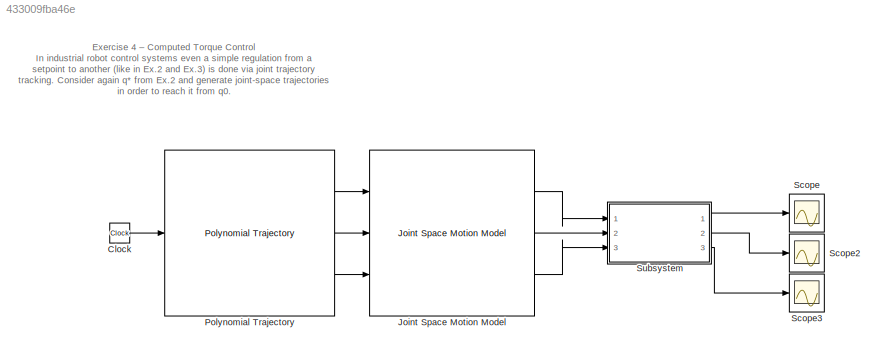
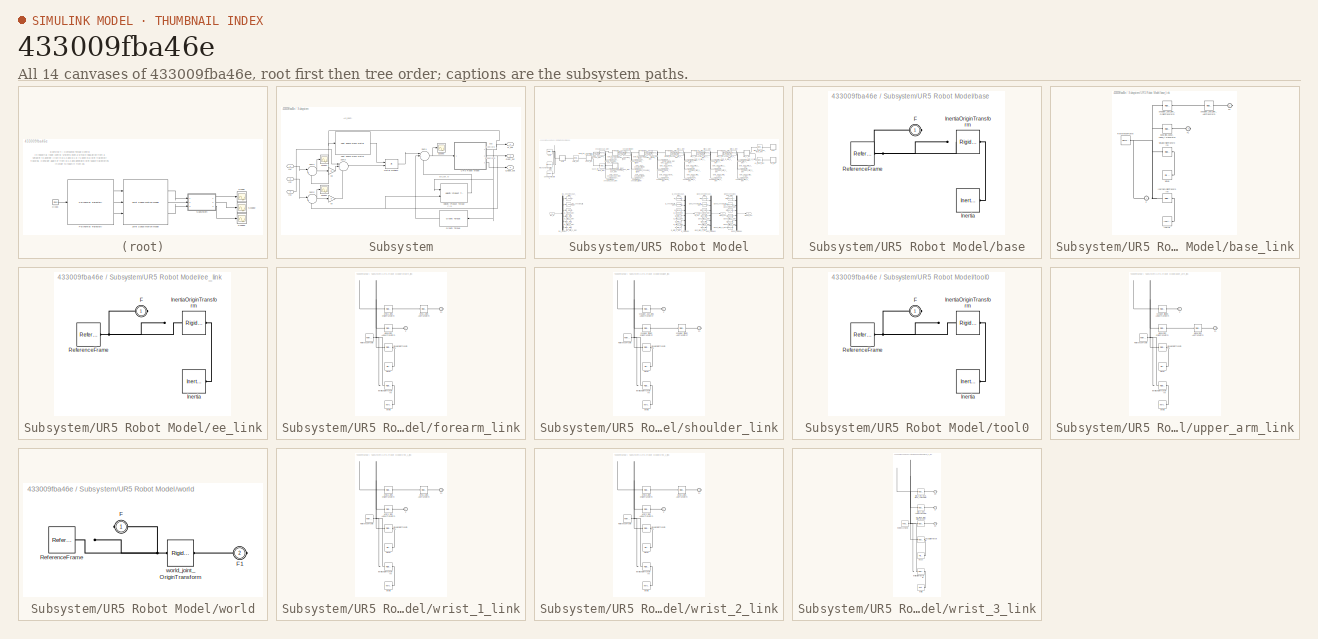
[diagram: thumbnail index - all 14 canvases of the model, root first then tree order]
MODEL slx_433009fba46e
KIND model
CONFIG AbsTol = auto
CONFIG EnableMultiTasking = off
CONFIG FixedStep = auto
CONFIG MaxStep = auto
CONFIG MinStep = auto
CONFIG RelTol = 1e-3
CONFIG SampleTimeConstraint = Unconstrained
CONFIG SolverName = VariableStepAuto
CONFIG StartTime = 0.0
CONFIG StopTime = 10.0
WORKSPACE source: mxarray member
WORKSPACE dq0 = [0 0 0 0 0 0]
WORKSPACE q0 = [0 0 0 0 0 0]
WORKSPACE robotModel: robotics.RigidBodyTree (value not decoded)
BLOCK [Clock] Clock
BLOCK [Reference] Joint Space Motion Model  REF=robotmaniplib/Joint Space Motion Model
  Ports = [3, 3]
  SourceBlock = robotmaniplib/Joint Space Motion Model
  SourceProductBaseCode = RO
  SourceType = Joint Space Motion Model
BLOCK [Reference] Polynomial Trajectory  REF=robotcorelib/Polynomial Trajectory
  Ports = [1, 3]
  SourceBlock = robotcorelib/Polynomial Trajectory
  SourceProductBaseCode = RO,NV,RR,UV
  SourceType = robotics.slcore.internal.block.PolyTrajSys
BLOCK [Scope] Scope
  Floating = off
  NumInputPorts = 1
  Ports = [1]
  ScopeSpecificationString = Simulink.scopes.TimeScopeBlockCfg('CurrentConfiguration', extmgr.ConfigurationSet(extmgr.Configuration('Core','General UI',true),extmgr.Configuration('Core','Source UI',true),extmgr.Configuration('Sources','WiredSimulink',true),extmgr.Configuration('Visuals','Time Domain',true,'SerializedDisplays',{struct('MinYLimReal','-2.76811','MaxYLimReal','3.80371','YLabelReal','','MinYLimMag','0.00000','MaxY...<+1448ch>
BLOCK [Scope] Scope2
  Floating = off
  NumInputPorts = 1
  Ports = [1]
  ScopeSpecificationString = Simulink.scopes.TimeScopeBlockCfg('CurrentConfiguration', extmgr.ConfigurationSet(extmgr.Configuration('Core','General UI',true),extmgr.Configuration('Core','Source UI',true),extmgr.Configuration('Sources','WiredSimulink',true,'DataLoggingVariableName','ScopeData2'),extmgr.Configuration('Visuals','Time Domain',true,'SerializedDisplays',{struct('MinYLimReal','-4.69973','MaxYLimReal','5.75727','YLab...<+1485ch>
BLOCK [Scope] Scope3
  Floating = off
  NumInputPorts = 1
  Ports = [1]
  ScopeSpecificationString = Simulink.scopes.TimeScopeBlockCfg('CurrentConfiguration', extmgr.ConfigurationSet(extmgr.Configuration('Core','General UI',true),extmgr.Configuration('Core','Source UI',true),extmgr.Configuration('Sources','WiredSimulink',true,'DataLoggingVariableName','ScopeData3'),extmgr.Configuration('Visuals','Time Domain',true,'SerializedDisplays',{struct('MinYLimReal','-149.61835','MaxYLimReal','89.92809','Y...<+1497ch>
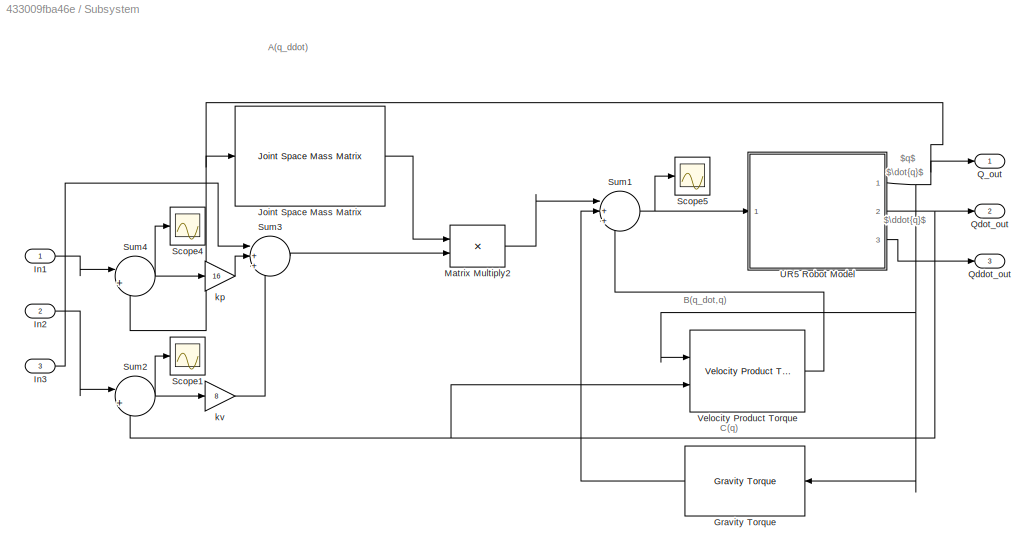
BLOCK [SubSystem] Subsystem
  Ports = [3, 3]
  RequestExecContextInheritance = off
BLOCK [Reference] Subsystem/Gravity Torque  REF=robotmaniplib/Gravity Torque
  Ports = [1, 1]
  SourceBlock = robotmaniplib/Gravity Torque
  SourceProductBaseCode = RO
  SourceType = Gravity Torque
BLOCK [Inport] Subsystem/In1
BLOCK [Inport] Subsystem/In2
  Port = 2
BLOCK [Inport] Subsystem/In3
  Port = 3
BLOCK [Reference] Subsystem/Joint Space Mass Matrix  REF=robotmaniplib/Joint Space Mass Matrix
  Ports = [1, 1]
  SourceBlock = robotmaniplib/Joint Space Mass Matrix
  SourceProductBaseCode = RO
  SourceType = Joint Space Mass Matrix
BLOCK [Product] Subsystem/Matrix Multiply2
  Multiplication = Matrix(*)
  Ports = [2, 1]
BLOCK [Outport] Subsystem/Q_out
BLOCK [Outport] Subsystem/Qddot_out
  Port = 3
BLOCK [Outport] Subsystem/Qdot_out
  Port = 2
BLOCK [Scope] Subsystem/Scope1
  Floating = off
  NumInputPorts = 1
  Ports = [1]
  ScopeSpecificationString = Simulink.scopes.TimeScopeBlockCfg('CurrentConfiguration', extmgr.ConfigurationSet(extmgr.Configuration('Core','General UI',true),extmgr.Configuration('Core','Source UI',true),extmgr.Configuration('Sources','WiredSimulink',true,'DataLoggingVariableName','ScopeData1'),extmgr.Configuration('Visuals','Time Domain',true,'SerializedDisplays',{struct('MinYLimReal','-2.74472','MaxYLimReal','1.58905','YLab...<+1437ch>
BLOCK [Scope] Subsystem/Scope4
  Floating = off
  NumInputPorts = 1
  Ports = [1]
  ScopeSpecificationString = Simulink.scopes.TimeScopeBlockCfg('CurrentConfiguration', extmgr.ConfigurationSet(extmgr.Configuration('Core','General UI',true),extmgr.Configuration('Core','Source UI',true),extmgr.Configuration('Sources','WiredSimulink',true,'DataLoggingVariableName','ScopeData4'),extmgr.Configuration('Visuals','Time Domain',true,'SerializedDisplays',{struct('MinYLimReal','-1.07992','MaxYLimReal','1.86532','YLab...<+1574ch>
BLOCK [Scope] Subsystem/Scope5
  Floating = off
  NumInputPorts = 1
  Ports = [1]
  ScopeSpecificationString = Simulink.scopes.TimeScopeBlockCfg('CurrentConfiguration', extmgr.ConfigurationSet(extmgr.Configuration('Core','General UI',true),extmgr.Configuration('Core','Source UI',true),extmgr.Configuration('Sources','WiredSimulink',true,'DataLoggingVariableName','ScopeData5'),extmgr.Configuration('Visuals','Time Domain',true,'SerializedDisplays',{struct('MinYLimReal','-429.67074','MaxYLimReal','146.64274','...<+1451ch>
BLOCK [Sum] Subsystem/Sum1
  Inputs = |+++
  Ports = [3, 1]
BLOCK [Sum] Subsystem/Sum2
  Inputs = |+-
  Ports = [2, 1]
BLOCK [Sum] Subsystem/Sum3
  Inputs = |+++
  Ports = [3, 1]
BLOCK [Sum] Subsystem/Sum4
  Inputs = |+-
  Ports = [2, 1]
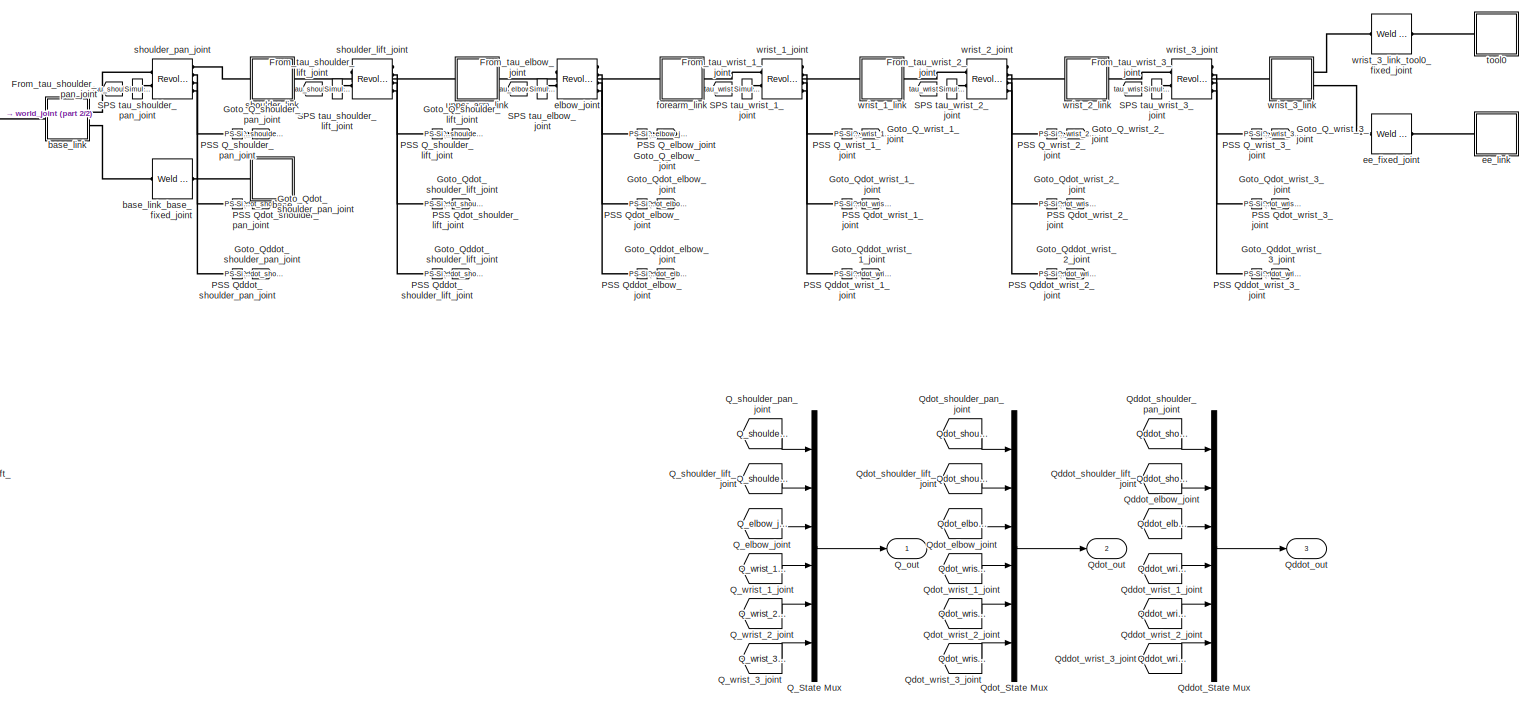
[diagram: Subsystem/UR5 Robot Model - part 1/2, most of the canvas]
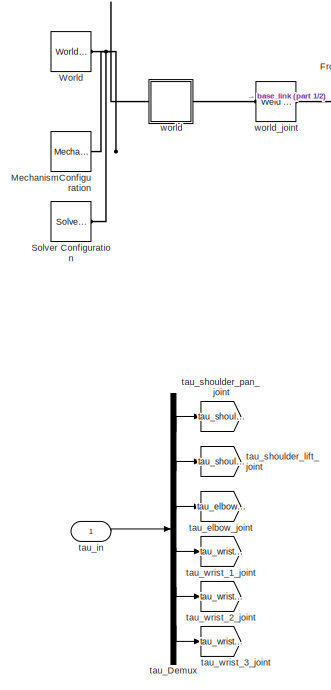
[diagram: Subsystem/UR5 Robot Model - part 2/2, left side, full height]
BLOCK [SubSystem] Subsystem/UR5 Robot Model
  Ports = [1, 3]
  RequestExecContextInheritance = off
BLOCK [From] Subsystem/UR5 Robot Model/From_tau_elbow_joint
  GotoTag = tau_elbow_joint
BLOCK [From] Subsystem/UR5 Robot Model/From_tau_shoulder_lift_joint
  GotoTag = tau_shoulder_lift_joint
BLOCK [From] Subsystem/UR5 Robot Model/From_tau_shoulder_pan_joint
  GotoTag = tau_shoulder_pan_joint
BLOCK [From] Subsystem/UR5 Robot Model/From_tau_wrist_1_joint
  GotoTag = tau_wrist_1_joint
BLOCK [From] Subsystem/UR5 Robot Model/From_tau_wrist_2_joint
  GotoTag = tau_wrist_2_joint
BLOCK [From] Subsystem/UR5 Robot Model/From_tau_wrist_3_joint
  GotoTag = tau_wrist_3_joint
BLOCK [Goto] Subsystem/UR5 Robot Model/Goto_Q_elbow_joint
  GotoTag = Q_elbow_joint
BLOCK [Goto] Subsystem/UR5 Robot Model/Goto_Q_shoulder_lift_joint
  GotoTag = Q_shoulder_lift_joint
BLOCK [Goto] Subsystem/UR5 Robot Model/Goto_Q_shoulder_pan_joint
  GotoTag = Q_shoulder_pan_joint
BLOCK [Goto] Subsystem/UR5 Robot Model/Goto_Q_wrist_1_joint
  GotoTag = Q_wrist_1_joint
BLOCK [Goto] Subsystem/UR5 Robot Model/Goto_Q_wrist_2_joint
  GotoTag = Q_wrist_2_joint
BLOCK [Goto] Subsystem/UR5 Robot Model/Goto_Q_wrist_3_joint
  GotoTag = Q_wrist_3_joint
BLOCK [Goto] Subsystem/UR5 Robot Model/Goto_Qddot_elbow_joint
  GotoTag = Qddot_elbow_joint
BLOCK [Goto] Subsystem/UR5 Robot Model/Goto_Qddot_shoulder_lift_joint
  GotoTag = Qddot_shoulder_lift_joint
BLOCK [Goto] Subsystem/UR5 Robot Model/Goto_Qddot_shoulder_pan_joint
  GotoTag = Qddot_shoulder_pan_joint
BLOCK [Goto] Subsystem/UR5 Robot Model/Goto_Qddot_wrist_1_joint
  GotoTag = Qddot_wrist_1_joint
BLOCK [Goto] Subsystem/UR5 Robot Model/Goto_Qddot_wrist_2_joint
  GotoTag = Qddot_wrist_2_joint
BLOCK [Goto] Subsystem/UR5 Robot Model/Goto_Qddot_wrist_3_joint
  GotoTag = Qddot_wrist_3_joint
BLOCK [Goto] Subsystem/UR5 Robot Model/Goto_Qdot_elbow_joint
  GotoTag = Qdot_elbow_joint
BLOCK [Goto] Subsystem/UR5 Robot Model/Goto_Qdot_shoulder_lift_joint
  GotoTag = Qdot_shoulder_lift_joint
BLOCK [Goto] Subsystem/UR5 Robot Model/Goto_Qdot_shoulder_pan_joint
  GotoTag = Qdot_shoulder_pan_joint
BLOCK [Goto] Subsystem/UR5 Robot Model/Goto_Qdot_wrist_1_joint
  GotoTag = Qdot_wrist_1_joint
BLOCK [Goto] Subsystem/UR5 Robot Model/Goto_Qdot_wrist_2_joint
  GotoTag = Qdot_wrist_2_joint
BLOCK [Goto] Subsystem/UR5 Robot Model/Goto_Qdot_wrist_3_joint
  GotoTag = Qdot_wrist_3_joint
BLOCK [Reference] Subsystem/UR5 Robot Model/MechanismConfiguration  REF=sm_lib/Utilities/Mechanism
Configuration
  Ports = [0, 0, 0, 0, 0, 0, 1]
  SourceBlock = sm_lib/Utilities/Mechanism\nConfiguration
  SourceProductBaseCode = MS
  SourceType = Mechanism\nConfiguration
BLOCK [Reference] Subsystem/UR5 Robot Model/PSS Q_elbow_joint  REF=nesl_utility/PS-Simulink
Converter
  Ports = [0, 1, 0, 0, 0, 1]
  SourceBlock = nesl_utility/PS-Simulink\nConverter
  SourceProductBaseCode = SS,PW,VE
  SourceType = PS-Simulink\nConverter
BLOCK [Reference] Subsystem/UR5 Robot Model/PSS Q_shoulder_lift_joint  REF=nesl_utility/PS-Simulink
Converter
  Ports = [0, 1, 0, 0, 0, 1]
  SourceBlock = nesl_utility/PS-Simulink\nConverter
  SourceProductBaseCode = SS,PW,VE
  SourceType = PS-Simulink\nConverter
BLOCK [Reference] Subsystem/UR5 Robot Model/PSS Q_shoulder_pan_joint  REF=nesl_utility/PS-Simulink
Converter
  Ports = [0, 1, 0, 0, 0, 1]
  SourceBlock = nesl_utility/PS-Simulink\nConverter
  SourceProductBaseCode = SS,PW,VE
  SourceType = PS-Simulink\nConverter
BLOCK [Reference] Subsystem/UR5 Robot Model/PSS Q_wrist_1_joint  REF=nesl_utility/PS-Simulink
Converter
  Ports = [0, 1, 0, 0, 0, 1]
  SourceBlock = nesl_utility/PS-Simulink\nConverter
  SourceProductBaseCode = SS,PW,VE
  SourceType = PS-Simulink\nConverter
BLOCK [Reference] Subsystem/UR5 Robot Model/PSS Q_wrist_2_joint  REF=nesl_utility/PS-Simulink
Converter
  Ports = [0, 1, 0, 0, 0, 1]
  SourceBlock = nesl_utility/PS-Simulink\nConverter
  SourceProductBaseCode = SS,PW,VE
  SourceType = PS-Simulink\nConverter
BLOCK [Reference] Subsystem/UR5 Robot Model/PSS Q_wrist_3_joint  REF=nesl_utility/PS-Simulink
Converter
  Ports = [0, 1, 0, 0, 0, 1]
  SourceBlock = nesl_utility/PS-Simulink\nConverter
  SourceProductBaseCode = SS,PW,VE
  SourceType = PS-Simulink\nConverter
BLOCK [Reference] Subsystem/UR5 Robot Model/PSS Qddot_elbow_joint  REF=nesl_utility/PS-Simulink
Converter
  Ports = [0, 1, 0, 0, 0, 1]
  SourceBlock = nesl_utility/PS-Simulink\nConverter
  SourceProductBaseCode = SS,PW,VE
  SourceType = PS-Simulink\nConverter
BLOCK [Reference] Subsystem/UR5 Robot Model/PSS Qddot_shoulder_lift_joint  REF=nesl_utility/PS-Simulink
Converter
  Ports = [0, 1, 0, 0, 0, 1]
  SourceBlock = nesl_utility/PS-Simulink\nConverter
  SourceProductBaseCode = SS,PW,VE
  SourceType = PS-Simulink\nConverter
BLOCK [Reference] Subsystem/UR5 Robot Model/PSS Qddot_shoulder_pan_joint  REF=nesl_utility/PS-Simulink
Converter
  Ports = [0, 1, 0, 0, 0, 1]
  SourceBlock = nesl_utility/PS-Simulink\nConverter
  SourceProductBaseCode = SS,PW,VE
  SourceType = PS-Simulink\nConverter
BLOCK [Reference] Subsystem/UR5 Robot Model/PSS Qddot_wrist_1_joint  REF=nesl_utility/PS-Simulink
Converter
  Ports = [0, 1, 0, 0, 0, 1]
  SourceBlock = nesl_utility/PS-Simulink\nConverter
  SourceProductBaseCode = SS,PW,VE
  SourceType = PS-Simulink\nConverter
BLOCK [Reference] Subsystem/UR5 Robot Model/PSS Qddot_wrist_2_joint  REF=nesl_utility/PS-Simulink
Converter
  Ports = [0, 1, 0, 0, 0, 1]
  SourceBlock = nesl_utility/PS-Simulink\nConverter
  SourceProductBaseCode = SS,PW,VE
  SourceType = PS-Simulink\nConverter
BLOCK [Reference] Subsystem/UR5 Robot Model/PSS Qddot_wrist_3_joint  REF=nesl_utility/PS-Simulink
Converter
  Ports = [0, 1, 0, 0, 0, 1]
  SourceBlock = nesl_utility/PS-Simulink\nConverter
  SourceProductBaseCode = SS,PW,VE
  SourceType = PS-Simulink\nConverter
BLOCK [Reference] Subsystem/UR5 Robot Model/PSS Qdot_elbow_joint  REF=nesl_utility/PS-Simulink
Converter
  Ports = [0, 1, 0, 0, 0, 1]
  SourceBlock = nesl_utility/PS-Simulink\nConverter
  SourceProductBaseCode = SS,PW,VE
  SourceType = PS-Simulink\nConverter
BLOCK [Reference] Subsystem/UR5 Robot Model/PSS Qdot_shoulder_lift_joint  REF=nesl_utility/PS-Simulink
Converter
  Ports = [0, 1, 0, 0, 0, 1]
  SourceBlock = nesl_utility/PS-Simulink\nConverter
  SourceProductBaseCode = SS,PW,VE
  SourceType = PS-Simulink\nConverter
BLOCK [Reference] Subsystem/UR5 Robot Model/PSS Qdot_shoulder_pan_joint  REF=nesl_utility/PS-Simulink
Converter
  Ports = [0, 1, 0, 0, 0, 1]
  SourceBlock = nesl_utility/PS-Simulink\nConverter
  SourceProductBaseCode = SS,PW,VE
  SourceType = PS-Simulink\nConverter
BLOCK [Reference] Subsystem/UR5 Robot Model/PSS Qdot_wrist_1_joint  REF=nesl_utility/PS-Simulink
Converter
  Ports = [0, 1, 0, 0, 0, 1]
  SourceBlock = nesl_utility/PS-Simulink\nConverter
  SourceProductBaseCode = SS,PW,VE
  SourceType = PS-Simulink\nConverter
BLOCK [Reference] Subsystem/UR5 Robot Model/PSS Qdot_wrist_2_joint  REF=nesl_utility/PS-Simulink
Converter
  Ports = [0, 1, 0, 0, 0, 1]
  SourceBlock = nesl_utility/PS-Simulink\nConverter
  SourceProductBaseCode = SS,PW,VE
  SourceType = PS-Simulink\nConverter
BLOCK [Reference] Subsystem/UR5 Robot Model/PSS Qdot_wrist_3_joint  REF=nesl_utility/PS-Simulink
Converter
  Ports = [0, 1, 0, 0, 0, 1]
  SourceBlock = nesl_utility/PS-Simulink\nConverter
  SourceProductBaseCode = SS,PW,VE
  SourceType = PS-Simulink\nConverter
BLOCK [Mux] Subsystem/UR5 Robot Model/Q_State Mux
  DisplayOption = bar
  Inputs = 6
  Ports = [6, 1]
BLOCK [From] Subsystem/UR5 Robot Model/Q_elbow_joint
  GotoTag = Q_elbow_joint
BLOCK [Outport] Subsystem/UR5 Robot Model/Q_out
BLOCK [From] Subsystem/UR5 Robot Model/Q_shoulder_lift_joint
  GotoTag = Q_shoulder_lift_joint
BLOCK [From] Subsystem/UR5 Robot Model/Q_shoulder_pan_joint
  GotoTag = Q_shoulder_pan_joint
BLOCK [From] Subsystem/UR5 Robot Model/Q_wrist_1_joint
  GotoTag = Q_wrist_1_joint
BLOCK [From] Subsystem/UR5 Robot Model/Q_wrist_2_joint
  GotoTag = Q_wrist_2_joint
BLOCK [From] Subsystem/UR5 Robot Model/Q_wrist_3_joint
  GotoTag = Q_wrist_3_joint
BLOCK [Mux] Subsystem/UR5 Robot Model/Qddot_State Mux
  DisplayOption = bar
  Inputs = 6
  Ports = [6, 1]
BLOCK [From] Subsystem/UR5 Robot Model/Qddot_elbow_joint
  GotoTag = Qddot_elbow_joint
BLOCK [Outport] Subsystem/UR5 Robot Model/Qddot_out
  Port = 3
BLOCK [From] Subsystem/UR5 Robot Model/Qddot_shoulder_lift_joint
  GotoTag = Qddot_shoulder_lift_joint
BLOCK [From] Subsystem/UR5 Robot Model/Qddot_shoulder_pan_joint
  GotoTag = Qddot_shoulder_pan_joint
BLOCK [From] Subsystem/UR5 Robot Model/Qddot_wrist_1_joint
  GotoTag = Qddot_wrist_1_joint
BLOCK [From] Subsystem/UR5 Robot Model/Qddot_wrist_2_joint
  GotoTag = Qddot_wrist_2_joint
BLOCK [From] Subsystem/UR5 Robot Model/Qddot_wrist_3_joint
  GotoTag = Qddot_wrist_3_joint
BLOCK [Mux] Subsystem/UR5 Robot Model/Qdot_State Mux
  DisplayOption = bar
  Inputs = 6
  Ports = [6, 1]
BLOCK [From] Subsystem/UR5 Robot Model/Qdot_elbow_joint
  GotoTag = Qdot_elbow_joint
BLOCK [Outport] Subsystem/UR5 Robot Model/Qdot_out
  Port = 2
BLOCK [From] Subsystem/UR5 Robot Model/Qdot_shoulder_lift_joint
  GotoTag = Qdot_shoulder_lift_joint
BLOCK [From] Subsystem/UR5 Robot Model/Qdot_shoulder_pan_joint
  GotoTag = Qdot_shoulder_pan_joint
BLOCK [From] Subsystem/UR5 Robot Model/Qdot_wrist_1_joint
  GotoTag = Qdot_wrist_1_joint
BLOCK [From] Subsystem/UR5 Robot Model/Qdot_wrist_2_joint
  GotoTag = Qdot_wrist_2_joint
BLOCK [From] Subsystem/UR5 Robot Model/Qdot_wrist_3_joint
  GotoTag = Qdot_wrist_3_joint
BLOCK [Reference] Subsystem/UR5 Robot Model/SPS tau_elbow_joint  REF=nesl_utility/Simulink-PS
Converter
  Ports = [1, 0, 0, 0, 0, 0, 1]
  SourceBlock = nesl_utility/Simulink-PS\nConverter
  SourceProductBaseCode = SS,PW,VE
  SourceType = Simulink-PS\nConverter
BLOCK [Reference] Subsystem/UR5 Robot Model/SPS tau_shoulder_lift_joint  REF=nesl_utility/Simulink-PS
Converter
  Ports = [1, 0, 0, 0, 0, 0, 1]
  SourceBlock = nesl_utility/Simulink-PS\nConverter
  SourceProductBaseCode = SS,PW,VE
  SourceType = Simulink-PS\nConverter
BLOCK [Reference] Subsystem/UR5 Robot Model/SPS tau_shoulder_pan_joint  REF=nesl_utility/Simulink-PS
Converter
  Ports = [1, 0, 0, 0, 0, 0, 1]
  SourceBlock = nesl_utility/Simulink-PS\nConverter
  SourceProductBaseCode = SS,PW,VE
  SourceType = Simulink-PS\nConverter
BLOCK [Reference] Subsystem/UR5 Robot Model/SPS tau_wrist_1_joint  REF=nesl_utility/Simulink-PS
Converter
  Ports = [1, 0, 0, 0, 0, 0, 1]
  SourceBlock = nesl_utility/Simulink-PS\nConverter
  SourceProductBaseCode = SS,PW,VE
  SourceType = Simulink-PS\nConverter
BLOCK [Reference] Subsystem/UR5 Robot Model/SPS tau_wrist_2_joint  REF=nesl_utility/Simulink-PS
Converter
  Ports = [1, 0, 0, 0, 0, 0, 1]
  SourceBlock = nesl_utility/Simulink-PS\nConverter
  SourceProductBaseCode = SS,PW,VE
  SourceType = Simulink-PS\nConverter
BLOCK [Reference] Subsystem/UR5 Robot Model/SPS tau_wrist_3_joint  REF=nesl_utility/Simulink-PS
Converter
  Ports = [1, 0, 0, 0, 0, 0, 1]
  SourceBlock = nesl_utility/Simulink-PS\nConverter
  SourceProductBaseCode = SS,PW,VE
  SourceType = Simulink-PS\nConverter
BLOCK [Reference] Subsystem/UR5 Robot Model/Solver Configuration  REF=nesl_utility/Solver
Configuration
  Ports = [0, 0, 0, 0, 0, 0, 1]
  SourceBlock = nesl_utility/Solver\nConfiguration
  SourceProductBaseCode = SS,PW,VE
  SourceType = Solver\nConfiguration
BLOCK [Reference] Subsystem/UR5 Robot Model/World  REF=sm_lib/Frames and
Transforms/World Frame
  Ports = [0, 0, 0, 0, 0, 0, 1]
  SourceBlock = sm_lib/Frames and\nTransforms/World Frame
  SourceProductBaseCode = MS
  SourceType = World Frame
BLOCK [SubSystem] Subsystem/UR5 Robot Model/base
  Ports = [0, 0, 0, 0, 0, 1]
  RequestExecContextInheritance = off
BLOCK [PMIOPort] Subsystem/UR5 Robot Model/base/F
  Side = Left
BLOCK [Reference] Subsystem/UR5 Robot Model/base/Inertia  REF=sm_lib/Body Elements/Inertia
  Ports = [0, 0, 0, 0, 0, 0, 1]
  SourceBlock = sm_lib/Body Elements/Inertia
  SourceProductBaseCode = MS
  SourceType = Inertia
BLOCK [Reference] Subsystem/UR5 Robot Model/base/InertiaOriginTransform  REF=sm_lib/Frames and
Transforms/Rigid
Transform
  Ports = [0, 0, 0, 0, 0, 1, 1]
  SourceBlock = sm_lib/Frames and\nTransforms/Rigid\nTransform
  SourceProductBaseCode = MS
  SourceType = Rigid\nTransform
BLOCK [Reference] Subsystem/UR5 Robot Model/base/ReferenceFrame  REF=sm_lib/Frames and
Transforms/Reference
Frame
  Ports = [0, 0, 0, 0, 0, 0, 1]
  SourceBlock = sm_lib/Frames and\nTransforms/Reference\nFrame
  SourceProductBaseCode = MS
  SourceType = Reference\nFrame
BLOCK [SubSystem] Subsystem/UR5 Robot Model/base_link
  Ports = [0, 0, 0, 0, 0, 1, 2]
  RequestExecContextInheritance = off
BLOCK [PMIOPort] Subsystem/UR5 Robot Model/base_link/F
  Side = Left
BLOCK [PMIOPort] Subsystem/UR5 Robot Model/base_link/F1
  Port = 3
  Side = Right
BLOCK [PMIOPort] Subsystem/UR5 Robot Model/base_link/F2
  Port = 2
  Side = Right
BLOCK [Reference] Subsystem/UR5 Robot Model/base_link/Inertia  REF=sm_lib/Body Elements/Inertia
  Ports = [0, 0, 0, 0, 0, 0, 1]
  SourceBlock = sm_lib/Body Elements/Inertia
  SourceProductBaseCode = MS
  SourceType = Inertia
BLOCK [Reference] Subsystem/UR5 Robot Model/base_link/InertiaOriginTransform  REF=sm_lib/Frames and
Transforms/Rigid
Transform
  Ports = [0, 0, 0, 0, 0, 1, 1]
  SourceBlock = sm_lib/Frames and\nTransforms/Rigid\nTransform
  SourceProductBaseCode = MS
  SourceType = Rigid\nTransform
BLOCK [Reference] Subsystem/UR5 Robot Model/base_link/ReferenceFrame  REF=sm_lib/Frames and
Transforms/Reference
Frame
  Ports = [0, 0, 0, 0, 0, 0, 1]
  SourceBlock = sm_lib/Frames and\nTransforms/Reference\nFrame
  SourceProductBaseCode = MS
  SourceType = Reference\nFrame
BLOCK [Reference] Subsystem/UR5 Robot Model/base_link/Visual  REF=sm_lib/Body Elements/File Solid
  Ports = [0, 0, 0, 0, 0, 0, 1]
  SourceBlock = sm_lib/Body Elements/File Solid
  SourceProductBaseCode = MS
  SourceType = File Solid
BLOCK [Reference] Subsystem/UR5 Robot Model/base_link/VisualOriginTransform  REF=sm_lib/Frames and
Transforms/Rigid
Transform
  Ports = [0, 0, 0, 0, 0, 1, 1]
  SourceBlock = sm_lib/Frames and\nTransforms/Rigid\nTransform
  SourceProductBaseCode = MS
  SourceType = Rigid\nTransform
BLOCK [Reference] Subsystem/UR5 Robot Model/base_link/base_link_base_fixed_joint_OriginTransform  REF=sm_lib/Frames and
Transforms/Rigid
Transform
  Ports = [0, 0, 0, 0, 0, 1, 1]
  SourceBlock = sm_lib/Frames and\nTransforms/Rigid\nTransform
  SourceProductBaseCode = MS
  SourceType = Rigid\nTransform
BLOCK [Reference] Subsystem/UR5 Robot Model/base_link/shoulder_pan_joint_AxisTransform  REF=sm_lib/Frames and
Transforms/Rigid
Transform
  Ports = [0, 0, 0, 0, 0, 1, 1]
  SourceBlock = sm_lib/Frames and\nTransforms/Rigid\nTransform
  SourceProductBaseCode = MS
  SourceType = Rigid\nTransform
BLOCK [Reference] Subsystem/UR5 Robot Model/base_link/shoulder_pan_joint_OriginTransform  REF=sm_lib/Frames and
Transforms/Rigid
Transform
  Ports = [0, 0, 0, 0, 0, 1, 1]
  SourceBlock = sm_lib/Frames and\nTransforms/Rigid\nTransform
  SourceProductBaseCode = MS
  SourceType = Rigid\nTransform
BLOCK [Reference] Subsystem/UR5 Robot Model/base_link_base_fixed_joint  REF=sm_lib/Joints/Weld Joint
  Ports = [0, 0, 0, 0, 0, 1, 1]
  SourceBlock = sm_lib/Joints/Weld Joint
  SourceProductBaseCode = MS
  SourceType = Weld Joint
BLOCK [Reference] Subsystem/UR5 Robot Model/ee_fixed_joint  REF=sm_lib/Joints/Weld Joint
  Ports = [0, 0, 0, 0, 0, 1, 1]
  SourceBlock = sm_lib/Joints/Weld Joint
  SourceProductBaseCode = MS
  SourceType = Weld Joint
BLOCK [SubSystem] Subsystem/UR5 Robot Model/ee_link
  Ports = [0, 0, 0, 0, 0, 1]
  RequestExecContextInheritance = off
BLOCK [PMIOPort] Subsystem/UR5 Robot Model/ee_link/F
  Side = Left
BLOCK [Reference] Subsystem/UR5 Robot Model/ee_link/Inertia  REF=sm_lib/Body Elements/Inertia
  Ports = [0, 0, 0, 0, 0, 0, 1]
  SourceBlock = sm_lib/Body Elements/Inertia
  SourceProductBaseCode = MS
  SourceType = Inertia
BLOCK [Reference] Subsystem/UR5 Robot Model/ee_link/InertiaOriginTransform  REF=sm_lib/Frames and
Transforms/Rigid
Transform
  Ports = [0, 0, 0, 0, 0, 1, 1]
  SourceBlock = sm_lib/Frames and\nTransforms/Rigid\nTransform
  SourceProductBaseCode = MS
  SourceType = Rigid\nTransform
BLOCK [Reference] Subsystem/UR5 Robot Model/ee_link/ReferenceFrame  REF=sm_lib/Frames and
Transforms/Reference
Frame
  Ports = [0, 0, 0, 0, 0, 0, 1]
  SourceBlock = sm_lib/Frames and\nTransforms/Reference\nFrame
  SourceProductBaseCode = MS
  SourceType = Reference\nFrame
BLOCK [Reference] Subsystem/UR5 Robot Model/elbow_joint  REF=sm_lib/Joints/Revolute Joint
  Ports = [0, 0, 0, 0, 0, 2, 4]
  SourceBlock = sm_lib/Joints/Revolute Joint
  SourceProductBaseCode = MS
  SourceType = Revolute Joint
BLOCK [SubSystem] Subsystem/UR5 Robot Model/forearm_link
  Ports = [0, 0, 0, 0, 0, 1, 1]
  RequestExecContextInheritance = off
BLOCK [PMIOPort] Subsystem/UR5 Robot Model/forearm_link/F
  Side = Left
BLOCK [PMIOPort] Subsystem/UR5 Robot Model/forearm_link/F1
  Port = 2
  Side = Right
BLOCK [Reference] Subsystem/UR5 Robot Model/forearm_link/Inertia  REF=sm_lib/Body Elements/Inertia
  Ports = [0, 0, 0, 0, 0, 0, 1]
  SourceBlock = sm_lib/Body Elements/Inertia
  SourceProductBaseCode = MS
  SourceType = Inertia
BLOCK [Reference] Subsystem/UR5 Robot Model/forearm_link/InertiaOriginTransform  REF=sm_lib/Frames and
Transforms/Rigid
Transform
  Ports = [0, 0, 0, 0, 0, 1, 1]
  SourceBlock = sm_lib/Frames and\nTransforms/Rigid\nTransform
  SourceProductBaseCode = MS
  SourceType = Rigid\nTransform
BLOCK [Reference] Subsystem/UR5 Robot Model/forearm_link/ReferenceFrame  REF=sm_lib/Frames and
Transforms/Reference
Frame
  Ports = [0, 0, 0, 0, 0, 0, 1]
  SourceBlock = sm_lib/Frames and\nTransforms/Reference\nFrame
  SourceProductBaseCode = MS
  SourceType = Reference\nFrame
BLOCK [Reference] Subsystem/UR5 Robot Model/forearm_link/Visual  REF=sm_lib/Body Elements/File Solid
  Ports = [0, 0, 0, 0, 0, 0, 1]
  SourceBlock = sm_lib/Body Elements/File Solid
  SourceProductBaseCode = MS
  SourceType = File Solid
BLOCK [Reference] Subsystem/UR5 Robot Model/forearm_link/VisualOriginTransform  REF=sm_lib/Frames and
Transforms/Rigid
Transform
  Ports = [0, 0, 0, 0, 0, 1, 1]
  SourceBlock = sm_lib/Frames and\nTransforms/Rigid\nTransform
  SourceProductBaseCode = MS
  SourceType = Rigid\nTransform
BLOCK [Reference] Subsystem/UR5 Robot Model/forearm_link/elbow_joint_AxisInvTransform  REF=sm_lib/Frames and
Transforms/Rigid
Transform
  Ports = [0, 0, 0, 0, 0, 1, 1]
  SourceBlock = sm_lib/Frames and\nTransforms/Rigid\nTransform
  SourceProductBaseCode = MS
  SourceType = Rigid\nTransform
BLOCK [Reference] Subsystem/UR5 Robot Model/forearm_link/wrist_1_joint_AxisTransform  REF=sm_lib/Frames and
Transforms/Rigid
Transform
  Ports = [0, 0, 0, 0, 0, 1, 1]
  SourceBlock = sm_lib/Frames and\nTransforms/Rigid\nTransform
  SourceProductBaseCode = MS
  SourceType = Rigid\nTransform
BLOCK [Reference] Subsystem/UR5 Robot Model/forearm_link/wrist_1_joint_OriginTransform  REF=sm_lib/Frames and
Transforms/Rigid
Transform
  Ports = [0, 0, 0, 0, 0, 1, 1]
  SourceBlock = sm_lib/Frames and\nTransforms/Rigid\nTransform
  SourceProductBaseCode = MS
  SourceType = Rigid\nTransform
BLOCK [Reference] Subsystem/UR5 Robot Model/shoulder_lift_joint  REF=sm_lib/Joints/Revolute Joint
  Ports = [0, 0, 0, 0, 0, 2, 4]
  SourceBlock = sm_lib/Joints/Revolute Joint
  SourceProductBaseCode = MS
  SourceType = Revolute Joint
BLOCK [SubSystem] Subsystem/UR5 Robot Model/shoulder_link
  Ports = [0, 0, 0, 0, 0, 1, 1]
  RequestExecContextInheritance = off
BLOCK [PMIOPort] Subsystem/UR5 Robot Model/shoulder_link/F
  Side = Left
BLOCK [PMIOPort] Subsystem/UR5 Robot Model/shoulder_link/F1
  Port = 2
  Side = Right
BLOCK [Reference] Subsystem/UR5 Robot Model/shoulder_link/Inertia  REF=sm_lib/Body Elements/Inertia
  Ports = [0, 0, 0, 0, 0, 0, 1]
  SourceBlock = sm_lib/Body Elements/Inertia
  SourceProductBaseCode = MS
  SourceType = Inertia
BLOCK [Reference] Subsystem/UR5 Robot Model/shoulder_link/InertiaOriginTransform  REF=sm_lib/Frames and
Transforms/Rigid
Transform
  Ports = [0, 0, 0, 0, 0, 1, 1]
  SourceBlock = sm_lib/Frames and\nTransforms/Rigid\nTransform
  SourceProductBaseCode = MS
  SourceType = Rigid\nTransform
BLOCK [Reference] Subsystem/UR5 Robot Model/shoulder_link/ReferenceFrame  REF=sm_lib/Frames and
Transforms/Reference
Frame
  Ports = [0, 0, 0, 0, 0, 0, 1]
  SourceBlock = sm_lib/Frames and\nTransforms/Reference\nFrame
  SourceProductBaseCode = MS
  SourceType = Reference\nFrame
BLOCK [Reference] Subsystem/UR5 Robot Model/shoulder_link/Visual  REF=sm_lib/Body Elements/File Solid
  Ports = [0, 0, 0, 0, 0, 0, 1]
  SourceBlock = sm_lib/Body Elements/File Solid
  SourceProductBaseCode = MS
  SourceType = File Solid
BLOCK [Reference] Subsystem/UR5 Robot Model/shoulder_link/VisualOriginTransform  REF=sm_lib/Frames and
Transforms/Rigid
Transform
  Ports = [0, 0, 0, 0, 0, 1, 1]
  SourceBlock = sm_lib/Frames and\nTransforms/Rigid\nTransform
  SourceProductBaseCode = MS
  SourceType = Rigid\nTransform
BLOCK [Reference] Subsystem/UR5 Robot Model/shoulder_link/shoulder_lift_joint_AxisTransform  REF=sm_lib/Frames and
Transforms/Rigid
Transform
  Ports = [0, 0, 0, 0, 0, 1, 1]
  SourceBlock = sm_lib/Frames and\nTransforms/Rigid\nTransform
  SourceProductBaseCode = MS
  SourceType = Rigid\nTransform
BLOCK [Reference] Subsystem/UR5 Robot Model/shoulder_link/shoulder_lift_joint_OriginTransform  REF=sm_lib/Frames and
Transforms/Rigid
Transform
  Ports = [0, 0, 0, 0, 0, 1, 1]
  SourceBlock = sm_lib/Frames and\nTransforms/Rigid\nTransform
  SourceProductBaseCode = MS
  SourceType = Rigid\nTransform
BLOCK [Reference] Subsystem/UR5 Robot Model/shoulder_link/shoulder_pan_joint_AxisInvTransform  REF=sm_lib/Frames and
Transforms/Rigid
Transform
  Ports = [0, 0, 0, 0, 0, 1, 1]
  SourceBlock = sm_lib/Frames and\nTransforms/Rigid\nTransform
  SourceProductBaseCode = MS
  SourceType = Rigid\nTransform
BLOCK [Reference] Subsystem/UR5 Robot Model/shoulder_pan_joint  REF=sm_lib/Joints/Revolute Joint
  Ports = [0, 0, 0, 0, 0, 2, 4]
  SourceBlock = sm_lib/Joints/Revolute Joint
  SourceProductBaseCode = MS
  SourceType = Revolute Joint
BLOCK [Demux] Subsystem/UR5 Robot Model/tau_Demux
  Outputs = 6
  Ports = [1, 6]
BLOCK [Goto] Subsystem/UR5 Robot Model/tau_elbow_joint
  GotoTag = tau_elbow_joint
BLOCK [Inport] Subsystem/UR5 Robot Model/tau_in
BLOCK [Goto] Subsystem/UR5 Robot Model/tau_shoulder_lift_joint
  GotoTag = tau_shoulder_lift_joint
BLOCK [Goto] Subsystem/UR5 Robot Model/tau_shoulder_pan_joint
  GotoTag = tau_shoulder_pan_joint
BLOCK [Goto] Subsystem/UR5 Robot Model/tau_wrist_1_joint
  GotoTag = tau_wrist_1_joint
BLOCK [Goto] Subsystem/UR5 Robot Model/tau_wrist_2_joint
  GotoTag = tau_wrist_2_joint
BLOCK [Goto] Subsystem/UR5 Robot Model/tau_wrist_3_joint
  GotoTag = tau_wrist_3_joint
BLOCK [SubSystem] Subsystem/UR5 Robot Model/tool0
  Ports = [0, 0, 0, 0, 0, 1]
  RequestExecContextInheritance = off
BLOCK [PMIOPort] Subsystem/UR5 Robot Model/tool0/F
  Side = Left
BLOCK [Reference] Subsystem/UR5 Robot Model/tool0/Inertia  REF=sm_lib/Body Elements/Inertia
  Ports = [0, 0, 0, 0, 0, 0, 1]
  SourceBlock = sm_lib/Body Elements/Inertia
  SourceProductBaseCode = MS
  SourceType = Inertia
BLOCK [Reference] Subsystem/UR5 Robot Model/tool0/InertiaOriginTransform  REF=sm_lib/Frames and
Transforms/Rigid
Transform
  Ports = [0, 0, 0, 0, 0, 1, 1]
  SourceBlock = sm_lib/Frames and\nTransforms/Rigid\nTransform
  SourceProductBaseCode = MS
  SourceType = Rigid\nTransform
BLOCK [Reference] Subsystem/UR5 Robot Model/tool0/ReferenceFrame  REF=sm_lib/Frames and
Transforms/Reference
Frame
  Ports = [0, 0, 0, 0, 0, 0, 1]
  SourceBlock = sm_lib/Frames and\nTransforms/Reference\nFrame
  SourceProductBaseCode = MS
  SourceType = Reference\nFrame
BLOCK [SubSystem] Subsystem/UR5 Robot Model/upper_arm_link
  Ports = [0, 0, 0, 0, 0, 1, 1]
  RequestExecContextInheritance = off
BLOCK [PMIOPort] Subsystem/UR5 Robot Model/upper_arm_link/F
  Side = Left
BLOCK [PMIOPort] Subsystem/UR5 Robot Model/upper_arm_link/F1
  Port = 2
  Side = Right
BLOCK [Reference] Subsystem/UR5 Robot Model/upper_arm_link/Inertia  REF=sm_lib/Body Elements/Inertia
  Ports = [0, 0, 0, 0, 0, 0, 1]
  SourceBlock = sm_lib/Body Elements/Inertia
  SourceProductBaseCode = MS
  SourceType = Inertia
BLOCK [Reference] Subsystem/UR5 Robot Model/upper_arm_link/InertiaOriginTransform  REF=sm_lib/Frames and
Transforms/Rigid
Transform
  Ports = [0, 0, 0, 0, 0, 1, 1]
  SourceBlock = sm_lib/Frames and\nTransforms/Rigid\nTransform
  SourceProductBaseCode = MS
  SourceType = Rigid\nTransform
BLOCK [Reference] Subsystem/UR5 Robot Model/upper_arm_link/ReferenceFrame  REF=sm_lib/Frames and
Transforms/Reference
Frame
  Ports = [0, 0, 0, 0, 0, 0, 1]
  SourceBlock = sm_lib/Frames and\nTransforms/Reference\nFrame
  SourceProductBaseCode = MS
  SourceType = Reference\nFrame
BLOCK [Reference] Subsystem/UR5 Robot Model/upper_arm_link/Visual  REF=sm_lib/Body Elements/File Solid
  Ports = [0, 0, 0, 0, 0, 0, 1]
  SourceBlock = sm_lib/Body Elements/File Solid
  SourceProductBaseCode = MS
  SourceType = File Solid
BLOCK [Reference] Subsystem/UR5 Robot Model/upper_arm_link/VisualOriginTransform  REF=sm_lib/Frames and
Transforms/Rigid
Transform
  Ports = [0, 0, 0, 0, 0, 1, 1]
  SourceBlock = sm_lib/Frames and\nTransforms/Rigid\nTransform
  SourceProductBaseCode = MS
  SourceType = Rigid\nTransform
BLOCK [Reference] Subsystem/UR5 Robot Model/upper_arm_link/elbow_joint_AxisTransform  REF=sm_lib/Frames and
Transforms/Rigid
Transform
  Ports = [0, 0, 0, 0, 0, 1, 1]
  SourceBlock = sm_lib/Frames and\nTransforms/Rigid\nTransform
  SourceProductBaseCode = MS
  SourceType = Rigid\nTransform
BLOCK [Reference] Subsystem/UR5 Robot Model/upper_arm_link/elbow_joint_OriginTransform  REF=sm_lib/Frames and
Transforms/Rigid
Transform
  Ports = [0, 0, 0, 0, 0, 1, 1]
  SourceBlock = sm_lib/Frames and\nTransforms/Rigid\nTransform
  SourceProductBaseCode = MS
  SourceType = Rigid\nTransform
BLOCK [Reference] Subsystem/UR5 Robot Model/upper_arm_link/shoulder_lift_joint_AxisInvTransform  REF=sm_lib/Frames and
Transforms/Rigid
Transform
  Ports = [0, 0, 0, 0, 0, 1, 1]
  SourceBlock = sm_lib/Frames and\nTransforms/Rigid\nTransform
  SourceProductBaseCode = MS
  SourceType = Rigid\nTransform
BLOCK [SubSystem] Subsystem/UR5 Robot Model/world
  Ports = [0, 0, 0, 0, 0, 1, 1]
  RequestExecContextInheritance = off
BLOCK [PMIOPort] Subsystem/UR5 Robot Model/world/F
  Side = Left
BLOCK [PMIOPort] Subsystem/UR5 Robot Model/world/F1
  Port = 2
  Side = Right
BLOCK [Reference] Subsystem/UR5 Robot Model/world/ReferenceFrame  REF=sm_lib/Frames and
Transforms/Reference
Frame
  Ports = [0, 0, 0, 0, 0, 0, 1]
  SourceBlock = sm_lib/Frames and\nTransforms/Reference\nFrame
  SourceProductBaseCode = MS
  SourceType = Reference\nFrame
BLOCK [Reference] Subsystem/UR5 Robot Model/world/world_joint_OriginTransform  REF=sm_lib/Frames and
Transforms/Rigid
Transform
  Ports = [0, 0, 0, 0, 0, 1, 1]
  SourceBlock = sm_lib/Frames and\nTransforms/Rigid\nTransform
  SourceProductBaseCode = MS
  SourceType = Rigid\nTransform
BLOCK [Reference] Subsystem/UR5 Robot Model/world_joint  REF=sm_lib/Joints/Weld Joint
  Ports = [0, 0, 0, 0, 0, 1, 1]
  SourceBlock = sm_lib/Joints/Weld Joint
  SourceProductBaseCode = MS
  SourceType = Weld Joint
BLOCK [Reference] Subsystem/UR5 Robot Model/wrist_1_joint  REF=sm_lib/Joints/Revolute Joint
  Ports = [0, 0, 0, 0, 0, 2, 4]
  SourceBlock = sm_lib/Joints/Revolute Joint
  SourceProductBaseCode = MS
  SourceType = Revolute Joint
BLOCK [SubSystem] Subsystem/UR5 Robot Model/wrist_1_link
  Ports = [0, 0, 0, 0, 0, 1, 1]
  RequestExecContextInheritance = off
BLOCK [PMIOPort] Subsystem/UR5 Robot Model/wrist_1_link/F
  Side = Left
BLOCK [PMIOPort] Subsystem/UR5 Robot Model/wrist_1_link/F1
  Port = 2
  Side = Right
BLOCK [Reference] Subsystem/UR5 Robot Model/wrist_1_link/Inertia  REF=sm_lib/Body Elements/Inertia
  Ports = [0, 0, 0, 0, 0, 0, 1]
  SourceBlock = sm_lib/Body Elements/Inertia
  SourceProductBaseCode = MS
  SourceType = Inertia
BLOCK [Reference] Subsystem/UR5 Robot Model/wrist_1_link/InertiaOriginTransform  REF=sm_lib/Frames and
Transforms/Rigid
Transform
  Ports = [0, 0, 0, 0, 0, 1, 1]
  SourceBlock = sm_lib/Frames and\nTransforms/Rigid\nTransform
  SourceProductBaseCode = MS
  SourceType = Rigid\nTransform
BLOCK [Reference] Subsystem/UR5 Robot Model/wrist_1_link/ReferenceFrame  REF=sm_lib/Frames and
Transforms/Reference
Frame
  Ports = [0, 0, 0, 0, 0, 0, 1]
  SourceBlock = sm_lib/Frames and\nTransforms/Reference\nFrame
  SourceProductBaseCode = MS
  SourceType = Reference\nFrame
BLOCK [Reference] Subsystem/UR5 Robot Model/wrist_1_link/Visual  REF=sm_lib/Body Elements/File Solid
  Ports = [0, 0, 0, 0, 0, 0, 1]
  SourceBlock = sm_lib/Body Elements/File Solid
  SourceProductBaseCode = MS
  SourceType = File Solid
BLOCK [Reference] Subsystem/UR5 Robot Model/wrist_1_link/VisualOriginTransform  REF=sm_lib/Frames and
Transforms/Rigid
Transform
  Ports = [0, 0, 0, 0, 0, 1, 1]
  SourceBlock = sm_lib/Frames and\nTransforms/Rigid\nTransform
  SourceProductBaseCode = MS
  SourceType = Rigid\nTransform
BLOCK [Reference] Subsystem/UR5 Robot Model/wrist_1_link/wrist_1_joint_AxisInvTransform  REF=sm_lib/Frames and
Transforms/Rigid
Transform
  Ports = [0, 0, 0, 0, 0, 1, 1]
  SourceBlock = sm_lib/Frames and\nTransforms/Rigid\nTransform
  SourceProductBaseCode = MS
  SourceType = Rigid\nTransform
BLOCK [Reference] Subsystem/UR5 Robot Model/wrist_1_link/wrist_2_joint_AxisTransform  REF=sm_lib/Frames and
Transforms/Rigid
Transform
  Ports = [0, 0, 0, 0, 0, 1, 1]
  SourceBlock = sm_lib/Frames and\nTransforms/Rigid\nTransform
  SourceProductBaseCode = MS
  SourceType = Rigid\nTransform
BLOCK [Reference] Subsystem/UR5 Robot Model/wrist_1_link/wrist_2_joint_OriginTransform  REF=sm_lib/Frames and
Transforms/Rigid
Transform
  Ports = [0, 0, 0, 0, 0, 1, 1]
  SourceBlock = sm_lib/Frames and\nTransforms/Rigid\nTransform
  SourceProductBaseCode = MS
  SourceType = Rigid\nTransform
BLOCK [Reference] Subsystem/UR5 Robot Model/wrist_2_joint  REF=sm_lib/Joints/Revolute Joint
  Ports = [0, 0, 0, 0, 0, 2, 4]
  SourceBlock = sm_lib/Joints/Revolute Joint
  SourceProductBaseCode = MS
  SourceType = Revolute Joint
BLOCK [SubSystem] Subsystem/UR5 Robot Model/wrist_2_link
  Ports = [0, 0, 0, 0, 0, 1, 1]
  RequestExecContextInheritance = off
BLOCK [PMIOPort] Subsystem/UR5 Robot Model/wrist_2_link/F
  Side = Left
BLOCK [PMIOPort] Subsystem/UR5 Robot Model/wrist_2_link/F1
  Port = 2
  Side = Right
BLOCK [Reference] Subsystem/UR5 Robot Model/wrist_2_link/Inertia  REF=sm_lib/Body Elements/Inertia
  Ports = [0, 0, 0, 0, 0, 0, 1]
  SourceBlock = sm_lib/Body Elements/Inertia
  SourceProductBaseCode = MS
  SourceType = Inertia
BLOCK [Reference] Subsystem/UR5 Robot Model/wrist_2_link/InertiaOriginTransform  REF=sm_lib/Frames and
Transforms/Rigid
Transform
  Ports = [0, 0, 0, 0, 0, 1, 1]
  SourceBlock = sm_lib/Frames and\nTransforms/Rigid\nTransform
  SourceProductBaseCode = MS
  SourceType = Rigid\nTransform
BLOCK [Reference] Subsystem/UR5 Robot Model/wrist_2_link/ReferenceFrame  REF=sm_lib/Frames and
Transforms/Reference
Frame
  Ports = [0, 0, 0, 0, 0, 0, 1]
  SourceBlock = sm_lib/Frames and\nTransforms/Reference\nFrame
  SourceProductBaseCode = MS
  SourceType = Reference\nFrame
BLOCK [Reference] Subsystem/UR5 Robot Model/wrist_2_link/Visual  REF=sm_lib/Body Elements/File Solid
  Ports = [0, 0, 0, 0, 0, 0, 1]
  SourceBlock = sm_lib/Body Elements/File Solid
  SourceProductBaseCode = MS
  SourceType = File Solid
BLOCK [Reference] Subsystem/UR5 Robot Model/wrist_2_link/VisualOriginTransform  REF=sm_lib/Frames and
Transforms/Rigid
Transform
  Ports = [0, 0, 0, 0, 0, 1, 1]
  SourceBlock = sm_lib/Frames and\nTransforms/Rigid\nTransform
  SourceProductBaseCode = MS
  SourceType = Rigid\nTransform
BLOCK [Reference] Subsystem/UR5 Robot Model/wrist_2_link/wrist_2_joint_AxisInvTransform  REF=sm_lib/Frames and
Transforms/Rigid
Transform
  Ports = [0, 0, 0, 0, 0, 1, 1]
  SourceBlock = sm_lib/Frames and\nTransforms/Rigid\nTransform
  SourceProductBaseCode = MS
  SourceType = Rigid\nTransform
BLOCK [Reference] Subsystem/UR5 Robot Model/wrist_2_link/wrist_3_joint_AxisTransform  REF=sm_lib/Frames and
Transforms/Rigid
Transform
  Ports = [0, 0, 0, 0, 0, 1, 1]
  SourceBlock = sm_lib/Frames and\nTransforms/Rigid\nTransform
  SourceProductBaseCode = MS
  SourceType = Rigid\nTransform
BLOCK [Reference] Subsystem/UR5 Robot Model/wrist_2_link/wrist_3_joint_OriginTransform  REF=sm_lib/Frames and
Transforms/Rigid
Transform
  Ports = [0, 0, 0, 0, 0, 1, 1]
  SourceBlock = sm_lib/Frames and\nTransforms/Rigid\nTransform
  SourceProductBaseCode = MS
  SourceType = Rigid\nTransform
BLOCK [Reference] Subsystem/UR5 Robot Model/wrist_3_joint  REF=sm_lib/Joints/Revolute Joint
  Ports = [0, 0, 0, 0, 0, 2, 4]
  SourceBlock = sm_lib/Joints/Revolute Joint
  SourceProductBaseCode = MS
  SourceType = Revolute Joint
BLOCK [SubSystem] Subsystem/UR5 Robot Model/wrist_3_link
  Ports = [0, 0, 0, 0, 0, 1, 2]
  RequestExecContextInheritance = off
BLOCK [PMIOPort] Subsystem/UR5 Robot Model/wrist_3_link/F
  Side = Left
BLOCK [PMIOPort] Subsystem/UR5 Robot Model/wrist_3_link/F1
  Port = 3
  Side = Right
BLOCK [PMIOPort] Subsystem/UR5 Robot Model/wrist_3_link/F2
  Port = 2
  Side = Right
BLOCK [Reference] Subsystem/UR5 Robot Model/wrist_3_link/Inertia  REF=sm_lib/Body Elements/Inertia
  Ports = [0, 0, 0, 0, 0, 0, 1]
  SourceBlock = sm_lib/Body Elements/Inertia
  SourceProductBaseCode = MS
  SourceType = Inertia
BLOCK [Reference] Subsystem/UR5 Robot Model/wrist_3_link/InertiaOriginTransform  REF=sm_lib/Frames and
Transforms/Rigid
Transform
  Ports = [0, 0, 0, 0, 0, 1, 1]
  SourceBlock = sm_lib/Frames and\nTransforms/Rigid\nTransform
  SourceProductBaseCode = MS
  SourceType = Rigid\nTransform
BLOCK [Reference] Subsystem/UR5 Robot Model/wrist_3_link/ReferenceFrame  REF=sm_lib/Frames and
Transforms/Reference
Frame
  Ports = [0, 0, 0, 0, 0, 0, 1]
  SourceBlock = sm_lib/Frames and\nTransforms/Reference\nFrame
  SourceProductBaseCode = MS
  SourceType = Reference\nFrame
BLOCK [Reference] Subsystem/UR5 Robot Model/wrist_3_link/Visual  REF=sm_lib/Body Elements/File Solid
  Ports = [0, 0, 0, 0, 0, 0, 1]
  SourceBlock = sm_lib/Body Elements/File Solid
  SourceProductBaseCode = MS
  SourceType = File Solid
BLOCK [Reference] Subsystem/UR5 Robot Model/wrist_3_link/VisualOriginTransform  REF=sm_lib/Frames and
Transforms/Rigid
Transform
  Ports = [0, 0, 0, 0, 0, 1, 1]
  SourceBlock = sm_lib/Frames and\nTransforms/Rigid\nTransform
  SourceProductBaseCode = MS
  SourceType = Rigid\nTransform
BLOCK [Reference] Subsystem/UR5 Robot Model/wrist_3_link/ee_fixed_joint_OriginTransform  REF=sm_lib/Frames and
Transforms/Rigid
Transform
  Ports = [0, 0, 0, 0, 0, 1, 1]
  SourceBlock = sm_lib/Frames and\nTransforms/Rigid\nTransform
  SourceProductBaseCode = MS
  SourceType = Rigid\nTransform
BLOCK [Reference] Subsystem/UR5 Robot Model/wrist_3_link/wrist_3_joint_AxisInvTransform  REF=sm_lib/Frames and
Transforms/Rigid
Transform
  Ports = [0, 0, 0, 0, 0, 1, 1]
  SourceBlock = sm_lib/Frames and\nTransforms/Rigid\nTransform
  SourceProductBaseCode = MS
  SourceType = Rigid\nTransform
BLOCK [Reference] Subsystem/UR5 Robot Model/wrist_3_link/wrist_3_link_tool0_fixed_joint_OriginTransform  REF=sm_lib/Frames and
Transforms/Rigid
Transform
  Ports = [0, 0, 0, 0, 0, 1, 1]
  SourceBlock = sm_lib/Frames and\nTransforms/Rigid\nTransform
  SourceProductBaseCode = MS
  SourceType = Rigid\nTransform
BLOCK [Reference] Subsystem/UR5 Robot Model/wrist_3_link_tool0_fixed_joint  REF=sm_lib/Joints/Weld Joint
  Ports = [0, 0, 0, 0, 0, 1, 1]
  SourceBlock = sm_lib/Joints/Weld Joint
  SourceProductBaseCode = MS
  SourceType = Weld Joint
BLOCK [Reference] Subsystem/Velocity Product Torque  REF=robotmaniplib/Velocity Product Torque
  Ports = [2, 1]
  SourceBlock = robotmaniplib/Velocity Product Torque
  SourceProductBaseCode = RO
  SourceType = Velocity Product Torque
BLOCK [Gain] Subsystem/kp
  Gain = 16
BLOCK [Gain] Subsystem/kv
  Gain = 8
ANNOTATION (root): Exercise 4 – Computed Torque Control In industrial robot control systems even a simple regulation from a setpoint to another (like in Ex.2 and Ex.3) is done via joint trajectory tracking. Consider again q* from Ex.2 and generate joint-space trajectories in order to reach it from q0.
ANNOTATION Subsystem: A(q_ddot)
ANNOTATION Subsystem: B(q_dot,q)
ANNOTATION Subsystem: C(q)
ANNOTATION Subsystem: $\ddot{q}$
ANNOTATION Subsystem: $\dot{q}$
ANNOTATION Subsystem: $q$
LINE Clock:1 -> Polynomial Trajectory:1
LINE Joint Space Motion Model:1 -> Subsystem:1
LINE Joint Space Motion Model:2 -> Subsystem:2
LINE Joint Space Motion Model:3 -> Subsystem:3
LINE Polynomial Trajectory:1 -> Joint Space Motion Model:1
LINE Polynomial Trajectory:2 -> Joint Space Motion Model:2
LINE Polynomial Trajectory:3 -> Joint Space Motion Model:3
LINE Subsystem/Gravity Torque:1 -> Subsystem/Sum1:2
LINE Subsystem/In1:1 -> Subsystem/Sum4:1
LINE Subsystem/In2:1 -> Subsystem/Sum2:1
LINE Subsystem/In3:1 -> Subsystem/Sum3:1
LINE Subsystem/Joint Space Mass Matrix:1 -> Subsystem/Matrix Multiply2:1
LINE Subsystem/Matrix Multiply2:1 -> Subsystem/Sum1:1
NET Subsystem/Sum1:1 -> Subsystem/Scope5:1, Subsystem/UR5 Robot Model:1
NET Subsystem/Sum2:1 -> Subsystem/Scope1:1, Subsystem/kv:1
LINE Subsystem/Sum3:1 -> Subsystem/Matrix Multiply2:2
NET Subsystem/Sum4:1 -> Subsystem/Scope4:1, Subsystem/kp:1
LINE Subsystem/UR5 Robot Model/From_tau_elbow_joint:1 -> Subsystem/UR5 Robot Model/SPS tau_elbow_joint:1
LINE Subsystem/UR5 Robot Model/From_tau_shoulder_lift_joint:1 -> Subsystem/UR5 Robot Model/SPS tau_shoulder_lift_joint:1
LINE Subsystem/UR5 Robot Model/From_tau_shoulder_pan_joint:1 -> Subsystem/UR5 Robot Model/SPS tau_shoulder_pan_joint:1
LINE Subsystem/UR5 Robot Model/From_tau_wrist_1_joint:1 -> Subsystem/UR5 Robot Model/SPS tau_wrist_1_joint:1
LINE Subsystem/UR5 Robot Model/From_tau_wrist_2_joint:1 -> Subsystem/UR5 Robot Model/SPS tau_wrist_2_joint:1
LINE Subsystem/UR5 Robot Model/From_tau_wrist_3_joint:1 -> Subsystem/UR5 Robot Model/SPS tau_wrist_3_joint:1
LINE Subsystem/UR5 Robot Model/PSS Q_elbow_joint:1 -> Subsystem/UR5 Robot Model/Goto_Q_elbow_joint:1
LINE Subsystem/UR5 Robot Model/PSS Q_shoulder_lift_joint:1 -> Subsystem/UR5 Robot Model/Goto_Q_shoulder_lift_joint:1
LINE Subsystem/UR5 Robot Model/PSS Q_shoulder_pan_joint:1 -> Subsystem/UR5 Robot Model/Goto_Q_shoulder_pan_joint:1
LINE Subsystem/UR5 Robot Model/PSS Q_wrist_1_joint:1 -> Subsystem/UR5 Robot Model/Goto_Q_wrist_1_joint:1
LINE Subsystem/UR5 Robot Model/PSS Q_wrist_2_joint:1 -> Subsystem/UR5 Robot Model/Goto_Q_wrist_2_joint:1
LINE Subsystem/UR5 Robot Model/PSS Q_wrist_3_joint:1 -> Subsystem/UR5 Robot Model/Goto_Q_wrist_3_joint:1
LINE Subsystem/UR5 Robot Model/PSS Qddot_elbow_joint:1 -> Subsystem/UR5 Robot Model/Goto_Qddot_elbow_joint:1
LINE Subsystem/UR5 Robot Model/PSS Qddot_shoulder_lift_joint:1 -> Subsystem/UR5 Robot Model/Goto_Qddot_shoulder_lift_joint:1
LINE Subsystem/UR5 Robot Model/PSS Qddot_shoulder_pan_joint:1 -> Subsystem/UR5 Robot Model/Goto_Qddot_shoulder_pan_joint:1
LINE Subsystem/UR5 Robot Model/PSS Qddot_wrist_1_joint:1 -> Subsystem/UR5 Robot Model/Goto_Qddot_wrist_1_joint:1
LINE Subsystem/UR5 Robot Model/PSS Qddot_wrist_2_joint:1 -> Subsystem/UR5 Robot Model/Goto_Qddot_wrist_2_joint:1
LINE Subsystem/UR5 Robot Model/PSS Qddot_wrist_3_joint:1 -> Subsystem/UR5 Robot Model/Goto_Qddot_wrist_3_joint:1
LINE Subsystem/UR5 Robot Model/PSS Qdot_elbow_joint:1 -> Subsystem/UR5 Robot Model/Goto_Qdot_elbow_joint:1
LINE Subsystem/UR5 Robot Model/PSS Qdot_shoulder_lift_joint:1 -> Subsystem/UR5 Robot Model/Goto_Qdot_shoulder_lift_joint:1
LINE Subsystem/UR5 Robot Model/PSS Qdot_shoulder_pan_joint:1 -> Subsystem/UR5 Robot Model/Goto_Qdot_shoulder_pan_joint:1
LINE Subsystem/UR5 Robot Model/PSS Qdot_wrist_1_joint:1 -> Subsystem/UR5 Robot Model/Goto_Qdot_wrist_1_joint:1
LINE Subsystem/UR5 Robot Model/PSS Qdot_wrist_2_joint:1 -> Subsystem/UR5 Robot Model/Goto_Qdot_wrist_2_joint:1
LINE Subsystem/UR5 Robot Model/PSS Qdot_wrist_3_joint:1 -> Subsystem/UR5 Robot Model/Goto_Qdot_wrist_3_joint:1
LINE Subsystem/UR5 Robot Model/Q_State Mux:1 -> Subsystem/UR5 Robot Model/Q_out:1
LINE Subsystem/UR5 Robot Model/Q_elbow_joint:1 -> Subsystem/UR5 Robot Model/Q_State Mux:3
LINE Subsystem/UR5 Robot Model/Q_shoulder_lift_joint:1 -> Subsystem/UR5 Robot Model/Q_State Mux:2
LINE Subsystem/UR5 Robot Model/Q_shoulder_pan_joint:1 -> Subsystem/UR5 Robot Model/Q_State Mux:1
LINE Subsystem/UR5 Robot Model/Q_wrist_1_joint:1 -> Subsystem/UR5 Robot Model/Q_State Mux:4
LINE Subsystem/UR5 Robot Model/Q_wrist_2_joint:1 -> Subsystem/UR5 Robot Model/Q_State Mux:5
LINE Subsystem/UR5 Robot Model/Q_wrist_3_joint:1 -> Subsystem/UR5 Robot Model/Q_State Mux:6
LINE Subsystem/UR5 Robot Model/Qddot_State Mux:1 -> Subsystem/UR5 Robot Model/Qddot_out:1
LINE Subsystem/UR5 Robot Model/Qddot_elbow_joint:1 -> Subsystem/UR5 Robot Model/Qddot_State Mux:3
LINE Subsystem/UR5 Robot Model/Qddot_shoulder_lift_joint:1 -> Subsystem/UR5 Robot Model/Qddot_State Mux:2
LINE Subsystem/UR5 Robot Model/Qddot_shoulder_pan_joint:1 -> Subsystem/UR5 Robot Model/Qddot_State Mux:1
LINE Subsystem/UR5 Robot Model/Qddot_wrist_1_joint:1 -> Subsystem/UR5 Robot Model/Qddot_State Mux:4
LINE Subsystem/UR5 Robot Model/Qddot_wrist_2_joint:1 -> Subsystem/UR5 Robot Model/Qddot_State Mux:5
LINE Subsystem/UR5 Robot Model/Qddot_wrist_3_joint:1 -> Subsystem/UR5 Robot Model/Qddot_State Mux:6
LINE Subsystem/UR5 Robot Model/Qdot_State Mux:1 -> Subsystem/UR5 Robot Model/Qdot_out:1
LINE Subsystem/UR5 Robot Model/Qdot_elbow_joint:1 -> Subsystem/UR5 Robot Model/Qdot_State Mux:3
LINE Subsystem/UR5 Robot Model/Qdot_shoulder_lift_joint:1 -> Subsystem/UR5 Robot Model/Qdot_State Mux:2
LINE Subsystem/UR5 Robot Model/Qdot_shoulder_pan_joint:1 -> Subsystem/UR5 Robot Model/Qdot_State Mux:1
LINE Subsystem/UR5 Robot Model/Qdot_wrist_1_joint:1 -> Subsystem/UR5 Robot Model/Qdot_State Mux:4
LINE Subsystem/UR5 Robot Model/Qdot_wrist_2_joint:1 -> Subsystem/UR5 Robot Model/Qdot_State Mux:5
LINE Subsystem/UR5 Robot Model/Qdot_wrist_3_joint:1 -> Subsystem/UR5 Robot Model/Qdot_State Mux:6
LINE Subsystem/UR5 Robot Model/tau_Demux:1 -> Subsystem/UR5 Robot Model/tau_shoulder_pan_joint:1
LINE Subsystem/UR5 Robot Model/tau_Demux:2 -> Subsystem/UR5 Robot Model/tau_shoulder_lift_joint:1
LINE Subsystem/UR5 Robot Model/tau_Demux:3 -> Subsystem/UR5 Robot Model/tau_elbow_joint:1
LINE Subsystem/UR5 Robot Model/tau_Demux:4 -> Subsystem/UR5 Robot Model/tau_wrist_1_joint:1
LINE Subsystem/UR5 Robot Model/tau_Demux:5 -> Subsystem/UR5 Robot Model/tau_wrist_2_joint:1
LINE Subsystem/UR5 Robot Model/tau_Demux:6 -> Subsystem/UR5 Robot Model/tau_wrist_3_joint:1
LINE Subsystem/UR5 Robot Model/tau_in:1 -> Subsystem/UR5 Robot Model/tau_Demux:1
NET Subsystem/UR5 Robot Model:1 -> Subsystem/Gravity Torque:1, Subsystem/Joint Space Mass Matrix:1, Subsystem/Q_out:1, Subsystem/Sum4:2, Subsystem/Velocity Product Torque:1
NET Subsystem/UR5 Robot Model:2 -> Subsystem/Qdot_out:1, Subsystem/Sum2:2, Subsystem/Velocity Product Torque:2
LINE Subsystem/UR5 Robot Model:3 -> Subsystem/Qddot_out:1
LINE Subsystem/Velocity Product Torque:1 -> Subsystem/Sum1:3
LINE Subsystem/kp:1 -> Subsystem/Sum3:2
LINE Subsystem/kv:1 -> Subsystem/Sum3:3
LINE Subsystem:1 -> Scope:1
LINE Subsystem:2 -> Scope2:1
LINE Subsystem:3 -> Scope3:1
PNET net1: Subsystem/UR5 Robot Model/MechanismConfiguration:RConn1 -- Subsystem/UR5 Robot Model/Solver Configuration:RConn1 -- Subsystem/UR5 Robot Model/World:RConn1 -- Subsystem/UR5 Robot Model/world:LConn1
PLINE Subsystem/UR5 Robot Model/PSS Q_elbow_joint:LConn1 -- Subsystem/UR5 Robot Model/elbow_joint:RConn2
PLINE Subsystem/UR5 Robot Model/PSS Q_shoulder_lift_joint:LConn1 -- Subsystem/UR5 Robot Model/shoulder_lift_joint:RConn2
PLINE Subsystem/UR5 Robot Model/PSS Q_shoulder_pan_joint:LConn1 -- Subsystem/UR5 Robot Model/shoulder_pan_joint:RConn2
PLINE Subsystem/UR5 Robot Model/PSS Q_wrist_1_joint:LConn1 -- Subsystem/UR5 Robot Model/wrist_1_joint:RConn2
PLINE Subsystem/UR5 Robot Model/PSS Q_wrist_2_joint:LConn1 -- Subsystem/UR5 Robot Model/wrist_2_joint:RConn2
PLINE Subsystem/UR5 Robot Model/PSS Q_wrist_3_joint:LConn1 -- Subsystem/UR5 Robot Model/wrist_3_joint:RConn2
PLINE Subsystem/UR5 Robot Model/PSS Qddot_elbow_joint:LConn1 -- Subsystem/UR5 Robot Model/elbow_joint:RConn4
PLINE Subsystem/UR5 Robot Model/PSS Qddot_shoulder_lift_joint:LConn1 -- Subsystem/UR5 Robot Model/shoulder_lift_joint:RConn4
PLINE Subsystem/UR5 Robot Model/PSS Qddot_shoulder_pan_joint:LConn1 -- Subsystem/UR5 Robot Model/shoulder_pan_joint:RConn4
PLINE Subsystem/UR5 Robot Model/PSS Qddot_wrist_1_joint:LConn1 -- Subsystem/UR5 Robot Model/wrist_1_joint:RConn4
PLINE Subsystem/UR5 Robot Model/PSS Qddot_wrist_2_joint:LConn1 -- Subsystem/UR5 Robot Model/wrist_2_joint:RConn4
PLINE Subsystem/UR5 Robot Model/PSS Qddot_wrist_3_joint:LConn1 -- Subsystem/UR5 Robot Model/wrist_3_joint:RConn4
PLINE Subsystem/UR5 Robot Model/PSS Qdot_elbow_joint:LConn1 -- Subsystem/UR5 Robot Model/elbow_joint:RConn3
PLINE Subsystem/UR5 Robot Model/PSS Qdot_shoulder_lift_joint:LConn1 -- Subsystem/UR5 Robot Model/shoulder_lift_joint:RConn3
PLINE Subsystem/UR5 Robot Model/PSS Qdot_shoulder_pan_joint:LConn1 -- Subsystem/UR5 Robot Model/shoulder_pan_joint:RConn3
PLINE Subsystem/UR5 Robot Model/PSS Qdot_wrist_1_joint:LConn1 -- Subsystem/UR5 Robot Model/wrist_1_joint:RConn3
PLINE Subsystem/UR5 Robot Model/PSS Qdot_wrist_2_joint:LConn1 -- Subsystem/UR5 Robot Model/wrist_2_joint:RConn3
PLINE Subsystem/UR5 Robot Model/PSS Qdot_wrist_3_joint:LConn1 -- Subsystem/UR5 Robot Model/wrist_3_joint:RConn3
PLINE Subsystem/UR5 Robot Model/SPS tau_elbow_joint:RConn1 -- Subsystem/UR5 Robot Model/elbow_joint:LConn2
PLINE Subsystem/UR5 Robot Model/SPS tau_shoulder_lift_joint:RConn1 -- Subsystem/UR5 Robot Model/shoulder_lift_joint:LConn2
PLINE Subsystem/UR5 Robot Model/SPS tau_shoulder_pan_joint:RConn1 -- Subsystem/UR5 Robot Model/shoulder_pan_joint:LConn2
PLINE Subsystem/UR5 Robot Model/SPS tau_wrist_1_joint:RConn1 -- Subsystem/UR5 Robot Model/wrist_1_joint:LConn2
PLINE Subsystem/UR5 Robot Model/SPS tau_wrist_2_joint:RConn1 -- Subsystem/UR5 Robot Model/wrist_2_joint:LConn2
PLINE Subsystem/UR5 Robot Model/SPS tau_wrist_3_joint:RConn1 -- Subsystem/UR5 Robot Model/wrist_3_joint:LConn2
PNET net2: Subsystem/UR5 Robot Model/base/F:RConn1 -- Subsystem/UR5 Robot Model/base/InertiaOriginTransform:LConn1 -- Subsystem/UR5 Robot Model/base/ReferenceFrame:RConn1
PLINE Subsystem/UR5 Robot Model/base/Inertia:RConn1 -- Subsystem/UR5 Robot Model/base/InertiaOriginTransform:RConn1
PLINE Subsystem/UR5 Robot Model/base:LConn1 -- Subsystem/UR5 Robot Model/base_link_base_fixed_joint:RConn1
PLINE Subsystem/UR5 Robot Model/base_link/F1:RConn1 -- Subsystem/UR5 Robot Model/base_link/base_link_base_fixed_joint_OriginTransform:RConn1
PLINE Subsystem/UR5 Robot Model/base_link/F2:RConn1 -- Subsystem/UR5 Robot Model/base_link/shoulder_pan_joint_AxisTransform:RConn1
PNET net3: Subsystem/UR5 Robot Model/base_link/F:RConn1 -- Subsystem/UR5 Robot Model/base_link/InertiaOriginTransform:LConn1 -- Subsystem/UR5 Robot Model/base_link/ReferenceFrame:RConn1 -- Subsystem/UR5 Robot Model/base_link/VisualOriginTransform:LConn1 -- Subsystem/UR5 Robot Model/base_link/base_link_base_fixed_joint_OriginTransform:LConn1 -- Subsystem/UR5 Robot Model/base_link/shoulder_pan_joint_OriginTransform:LConn1
PLINE Subsystem/UR5 Robot Model/base_link/Inertia:RConn1 -- Subsystem/UR5 Robot Model/base_link/InertiaOriginTransform:RConn1
PLINE Subsystem/UR5 Robot Model/base_link/Visual:RConn1 -- Subsystem/UR5 Robot Model/base_link/VisualOriginTransform:RConn1
PLINE Subsystem/UR5 Robot Model/base_link/shoulder_pan_joint_AxisTransform:LConn1 -- Subsystem/UR5 Robot Model/base_link/shoulder_pan_joint_OriginTransform:RConn1
PLINE Subsystem/UR5 Robot Model/base_link:LConn1 -- Subsystem/UR5 Robot Model/world_joint:RConn1
PLINE Subsystem/UR5 Robot Model/base_link:RConn1 -- Subsystem/UR5 Robot Model/shoulder_pan_joint:LConn1
PLINE Subsystem/UR5 Robot Model/base_link:RConn2 -- Subsystem/UR5 Robot Model/base_link_base_fixed_joint:LConn1
PLINE Subsystem/UR5 Robot Model/ee_fixed_joint:LConn1 -- Subsystem/UR5 Robot Model/wrist_3_link:RConn2
PLINE Subsystem/UR5 Robot Model/ee_fixed_joint:RConn1 -- Subsystem/UR5 Robot Model/ee_link:LConn1
PNET net4: Subsystem/UR5 Robot Model/ee_link/F:RConn1 -- Subsystem/UR5 Robot Model/ee_link/InertiaOriginTransform:LConn1 -- Subsystem/UR5 Robot Model/ee_link/ReferenceFrame:RConn1
PLINE Subsystem/UR5 Robot Model/ee_link/Inertia:RConn1 -- Subsystem/UR5 Robot Model/ee_link/InertiaOriginTransform:RConn1
PLINE Subsystem/UR5 Robot Model/elbow_joint:LConn1 -- Subsystem/UR5 Robot Model/upper_arm_link:RConn1
PLINE Subsystem/UR5 Robot Model/elbow_joint:RConn1 -- Subsystem/UR5 Robot Model/forearm_link:LConn1
PLINE Subsystem/UR5 Robot Model/forearm_link/F1:RConn1 -- Subsystem/UR5 Robot Model/forearm_link/wrist_1_joint_AxisTransform:RConn1
PLINE Subsystem/UR5 Robot Model/forearm_link/F:RConn1 -- Subsystem/UR5 Robot Model/forearm_link/elbow_joint_AxisInvTransform:RConn1
PLINE Subsystem/UR5 Robot Model/forearm_link/Inertia:RConn1 -- Subsystem/UR5 Robot Model/forearm_link/InertiaOriginTransform:RConn1
PNET net5: Subsystem/UR5 Robot Model/forearm_link/InertiaOriginTransform:LConn1 -- Subsystem/UR5 Robot Model/forearm_link/ReferenceFrame:RConn1 -- Subsystem/UR5 Robot Model/forearm_link/VisualOriginTransform:LConn1 -- Subsystem/UR5 Robot Model/forearm_link/elbow_joint_AxisInvTransform:LConn1 -- Subsystem/UR5 Robot Model/forearm_link/wrist_1_joint_OriginTransform:LConn1
PLINE Subsystem/UR5 Robot Model/forearm_link/Visual:RConn1 -- Subsystem/UR5 Robot Model/forearm_link/VisualOriginTransform:RConn1
PLINE Subsystem/UR5 Robot Model/forearm_link/wrist_1_joint_AxisTransform:LConn1 -- Subsystem/UR5 Robot Model/forearm_link/wrist_1_joint_OriginTransform:RConn1
PLINE Subsystem/UR5 Robot Model/forearm_link:RConn1 -- Subsystem/UR5 Robot Model/wrist_1_joint:LConn1
PLINE Subsystem/UR5 Robot Model/shoulder_lift_joint:LConn1 -- Subsystem/UR5 Robot Model/shoulder_link:RConn1
PLINE Subsystem/UR5 Robot Model/shoulder_lift_joint:RConn1 -- Subsystem/UR5 Robot Model/upper_arm_link:LConn1
PLINE Subsystem/UR5 Robot Model/shoulder_link/F1:RConn1 -- Subsystem/UR5 Robot Model/shoulder_link/shoulder_lift_joint_AxisTransform:RConn1
PLINE Subsystem/UR5 Robot Model/shoulder_link/F:RConn1 -- Subsystem/UR5 Robot Model/shoulder_link/shoulder_pan_joint_AxisInvTransform:RConn1
PLINE Subsystem/UR5 Robot Model/shoulder_link/Inertia:RConn1 -- Subsystem/UR5 Robot Model/shoulder_link/InertiaOriginTransform:RConn1
PNET net6: Subsystem/UR5 Robot Model/shoulder_link/InertiaOriginTransform:LConn1 -- Subsystem/UR5 Robot Model/shoulder_link/ReferenceFrame:RConn1 -- Subsystem/UR5 Robot Model/shoulder_link/VisualOriginTransform:LConn1 -- Subsystem/UR5 Robot Model/shoulder_link/shoulder_lift_joint_OriginTransform:LConn1 -- Subsystem/UR5 Robot Model/shoulder_link/shoulder_pan_joint_AxisInvTransform:LConn1
PLINE Subsystem/UR5 Robot Model/shoulder_link/Visual:RConn1 -- Subsystem/UR5 Robot Model/shoulder_link/VisualOriginTransform:RConn1
PLINE Subsystem/UR5 Robot Model/shoulder_link/shoulder_lift_joint_AxisTransform:LConn1 -- Subsystem/UR5 Robot Model/shoulder_link/shoulder_lift_joint_OriginTransform:RConn1
PLINE Subsystem/UR5 Robot Model/shoulder_link:LConn1 -- Subsystem/UR5 Robot Model/shoulder_pan_joint:RConn1
PNET net7: Subsystem/UR5 Robot Model/tool0/F:RConn1 -- Subsystem/UR5 Robot Model/tool0/InertiaOriginTransform:LConn1 -- Subsystem/UR5 Robot Model/tool0/ReferenceFrame:RConn1
PLINE Subsystem/UR5 Robot Model/tool0/Inertia:RConn1 -- Subsystem/UR5 Robot Model/tool0/InertiaOriginTransform:RConn1
PLINE Subsystem/UR5 Robot Model/tool0:LConn1 -- Subsystem/UR5 Robot Model/wrist_3_link_tool0_fixed_joint:RConn1
PLINE Subsystem/UR5 Robot Model/upper_arm_link/F1:RConn1 -- Subsystem/UR5 Robot Model/upper_arm_link/elbow_joint_AxisTransform:RConn1
PLINE Subsystem/UR5 Robot Model/upper_arm_link/F:RConn1 -- Subsystem/UR5 Robot Model/upper_arm_link/shoulder_lift_joint_AxisInvTransform:RConn1
PLINE Subsystem/UR5 Robot Model/upper_arm_link/Inertia:RConn1 -- Subsystem/UR5 Robot Model/upper_arm_link/InertiaOriginTransform:RConn1
PNET net8: Subsystem/UR5 Robot Model/upper_arm_link/InertiaOriginTransform:LConn1 -- Subsystem/UR5 Robot Model/upper_arm_link/ReferenceFrame:RConn1 -- Subsystem/UR5 Robot Model/upper_arm_link/VisualOriginTransform:LConn1 -- Subsystem/UR5 Robot Model/upper_arm_link/elbow_joint_OriginTransform:LConn1 -- Subsystem/UR5 Robot Model/upper_arm_link/shoulder_lift_joint_AxisInvTransform:LConn1
PLINE Subsystem/UR5 Robot Model/upper_arm_link/Visual:RConn1 -- Subsystem/UR5 Robot Model/upper_arm_link/VisualOriginTransform:RConn1
PLINE Subsystem/UR5 Robot Model/upper_arm_link/elbow_joint_AxisTransform:LConn1 -- Subsystem/UR5 Robot Model/upper_arm_link/elbow_joint_OriginTransform:RConn1
PLINE Subsystem/UR5 Robot Model/world/F1:RConn1 -- Subsystem/UR5 Robot Model/world/world_joint_OriginTransform:RConn1
PNET net9: Subsystem/UR5 Robot Model/world/F:RConn1 -- Subsystem/UR5 Robot Model/world/ReferenceFrame:RConn1 -- Subsystem/UR5 Robot Model/world/world_joint_OriginTransform:LConn1
PLINE Subsystem/UR5 Robot Model/world:RConn1 -- Subsystem/UR5 Robot Model/world_joint:LConn1
PLINE Subsystem/UR5 Robot Model/wrist_1_joint:RConn1 -- Subsystem/UR5 Robot Model/wrist_1_link:LConn1
PLINE Subsystem/UR5 Robot Model/wrist_1_link/F1:RConn1 -- Subsystem/UR5 Robot Model/wrist_1_link/wrist_2_joint_AxisTransform:RConn1
PLINE Subsystem/UR5 Robot Model/wrist_1_link/F:RConn1 -- Subsystem/UR5 Robot Model/wrist_1_link/wrist_1_joint_AxisInvTransform:RConn1
PLINE Subsystem/UR5 Robot Model/wrist_1_link/Inertia:RConn1 -- Subsystem/UR5 Robot Model/wrist_1_link/InertiaOriginTransform:RConn1
PNET net10: Subsystem/UR5 Robot Model/wrist_1_link/InertiaOriginTransform:LConn1 -- Subsystem/UR5 Robot Model/wrist_1_link/ReferenceFrame:RConn1 -- Subsystem/UR5 Robot Model/wrist_1_link/VisualOriginTransform:LConn1 -- Subsystem/UR5 Robot Model/wrist_1_link/wrist_1_joint_AxisInvTransform:LConn1 -- Subsystem/UR5 Robot Model/wrist_1_link/wrist_2_joint_OriginTransform:LConn1
PLINE Subsystem/UR5 Robot Model/wrist_1_link/Visual:RConn1 -- Subsystem/UR5 Robot Model/wrist_1_link/VisualOriginTransform:RConn1
PLINE Subsystem/UR5 Robot Model/wrist_1_link/wrist_2_joint_AxisTransform:LConn1 -- Subsystem/UR5 Robot Model/wrist_1_link/wrist_2_joint_OriginTransform:RConn1
PLINE Subsystem/UR5 Robot Model/wrist_1_link:RConn1 -- Subsystem/UR5 Robot Model/wrist_2_joint:LConn1
PLINE Subsystem/UR5 Robot Model/wrist_2_joint:RConn1 -- Subsystem/UR5 Robot Model/wrist_2_link:LConn1
PLINE Subsystem/UR5 Robot Model/wrist_2_link/F1:RConn1 -- Subsystem/UR5 Robot Model/wrist_2_link/wrist_3_joint_AxisTransform:RConn1
PLINE Subsystem/UR5 Robot Model/wrist_2_link/F:RConn1 -- Subsystem/UR5 Robot Model/wrist_2_link/wrist_2_joint_AxisInvTransform:RConn1
PLINE Subsystem/UR5 Robot Model/wrist_2_link/Inertia:RConn1 -- Subsystem/UR5 Robot Model/wrist_2_link/InertiaOriginTransform:RConn1
PNET net11: Subsystem/UR5 Robot Model/wrist_2_link/InertiaOriginTransform:LConn1 -- Subsystem/UR5 Robot Model/wrist_2_link/ReferenceFrame:RConn1 -- Subsystem/UR5 Robot Model/wrist_2_link/VisualOriginTransform:LConn1 -- Subsystem/UR5 Robot Model/wrist_2_link/wrist_2_joint_AxisInvTransform:LConn1 -- Subsystem/UR5 Robot Model/wrist_2_link/wrist_3_joint_OriginTransform:LConn1
PLINE Subsystem/UR5 Robot Model/wrist_2_link/Visual:RConn1 -- Subsystem/UR5 Robot Model/wrist_2_link/VisualOriginTransform:RConn1
PLINE Subsystem/UR5 Robot Model/wrist_2_link/wrist_3_joint_AxisTransform:LConn1 -- Subsystem/UR5 Robot Model/wrist_2_link/wrist_3_joint_OriginTransform:RConn1
PLINE Subsystem/UR5 Robot Model/wrist_2_link:RConn1 -- Subsystem/UR5 Robot Model/wrist_3_joint:LConn1
PLINE Subsystem/UR5 Robot Model/wrist_3_joint:RConn1 -- Subsystem/UR5 Robot Model/wrist_3_link:LConn1
PLINE Subsystem/UR5 Robot Model/wrist_3_link/F1:RConn1 -- Subsystem/UR5 Robot Model/wrist_3_link/ee_fixed_joint_OriginTransform:RConn1
PLINE Subsystem/UR5 Robot Model/wrist_3_link/F2:RConn1 -- Subsystem/UR5 Robot Model/wrist_3_link/wrist_3_link_tool0_fixed_joint_OriginTransform:RConn1
PLINE Subsystem/UR5 Robot Model/wrist_3_link/F:RConn1 -- Subsystem/UR5 Robot Model/wrist_3_link/wrist_3_joint_AxisInvTransform:RConn1
PLINE Subsystem/UR5 Robot Model/wrist_3_link/Inertia:RConn1 -- Subsystem/UR5 Robot Model/wrist_3_link/InertiaOriginTransform:RConn1
PNET net12: Subsystem/UR5 Robot Model/wrist_3_link/InertiaOriginTransform:LConn1 -- Subsystem/UR5 Robot Model/wrist_3_link/ReferenceFrame:RConn1 -- Subsystem/UR5 Robot Model/wrist_3_link/VisualOriginTransform:LConn1 -- Subsystem/UR5 Robot Model/wrist_3_link/ee_fixed_joint_OriginTransform:LConn1 -- Subsystem/UR5 Robot Model/wrist_3_link/wrist_3_joint_AxisInvTransform:LConn1 -- Subsystem/UR5 Robot Model/wrist_3_link/wrist_3_link_tool0_fixed_joint_OriginTransform:LConn1
PLINE Subsystem/UR5 Robot Model/wrist_3_link/Visual:RConn1 -- Subsystem/UR5 Robot Model/wrist_3_link/VisualOriginTransform:RConn1
PLINE Subsystem/UR5 Robot Model/wrist_3_link:RConn1 -- Subsystem/UR5 Robot Model/wrist_3_link_tool0_fixed_joint:LConn1
note: NET lines group one-source signal fan-out (src -> all destinations, sorted); 1:1 wires keep LINE; PNET lines group multi-terminal physical nets as a canonical sorted terminal list (undirected conserving connections); 2-terminal nets keep the pairwise PLINE form
